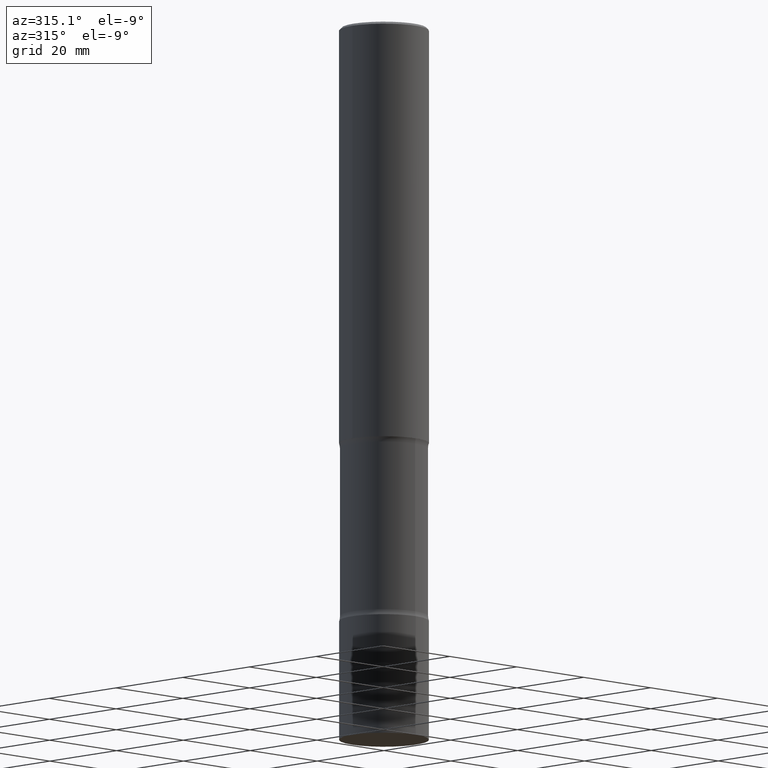
[diagram: clean part render]
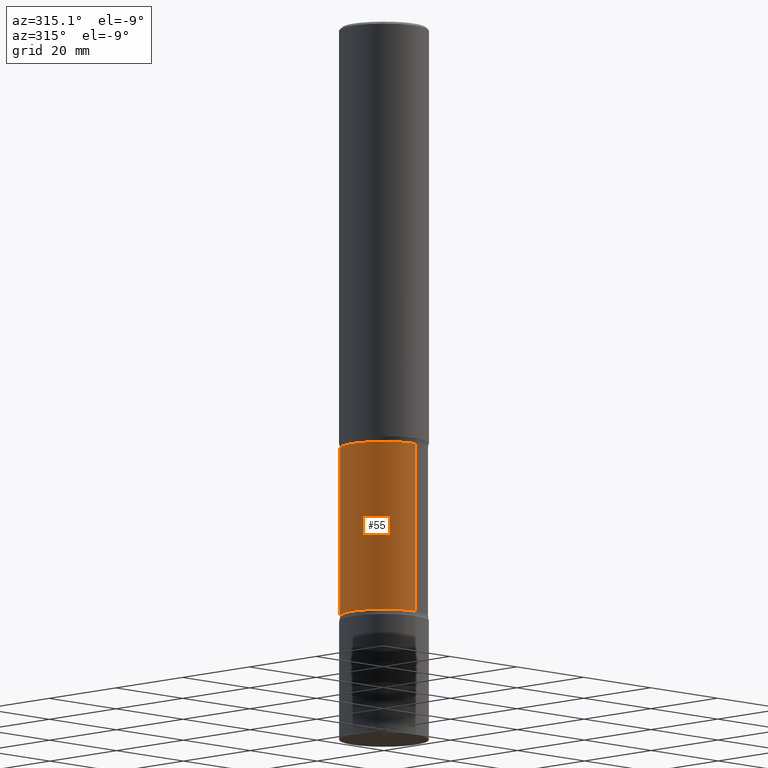
[diagram: same view with one face highlighted and labeled with its STEP entity id]
A machine part, auxiliary view. The second image highlights one B-rep face of the part: STEP entity #55.
In plain terms, the highlighted cylindrical surface (partial cylindrical patch) has radius 9.3345 mm, axis along (0, -0, -1).
Its self-contained STEP definition (entity closure, byte-faithful):
#14 = AXIS2_PLACEMENT_3D ( 'NONE', #161, #361, #438 ) ;
#15 = VECTOR ( 'NONE', #487, 39.37007874015748143 ) ;
#29 = DIRECTION ( 'NONE',  ( 2.616648921585421655E-29, -3.246341670622831231E-15, -1.000000000000000000 ) ) ;
#45 = CIRCLE ( 'NONE', #274, 0.3675000000000002709 ) ;
#48 = CARTESIAN_POINT ( 'NONE',  ( 1.211441709230488827E-28, -1.732087270645738470E-14, -4.957353194726919376 ) ) ;
#54 = DIRECTION ( 'NONE',  ( 2.616648921585421655E-29, -3.246341670622831231E-15, -1.000000000000000000 ) ) ;
#55 = ADVANCED_FACE ( 'NONE', ( #235 ), #435, .T. ) ;
#77 = CIRCLE ( 'NONE', #178, 0.3675000000000003264 ) ;
#110 = VERTEX_POINT ( 'NONE', #405 ) ;
#142 = ORIENTED_EDGE ( 'NONE', *, *, #369, .T. ) ;
#145 = CARTESIAN_POINT ( 'NONE',  ( 2.566238784049788529E-15, 0.3674999999999875588, -3.542646805273082400 ) ) ;
#152 = EDGE_CURVE ( 'NONE', #352, #429, #45, .T. ) ;
#155 = VERTEX_POINT ( 'NONE', #255 ) ;
#161 = CARTESIAN_POINT ( 'NONE',  ( 1.484265773091717840E-28, -2.070566047815715111E-14, -5.999999999999999112 ) ) ;
#178 = AXIS2_PLACEMENT_3D ( 'NONE', #48, #54, #318 ) ;
#210 = DIRECTION ( 'NONE',  ( 6.982962677686265922E-15, 1.000000000000000000, -2.973439993103957881E-15 ) ) ;
#235 = FACE_OUTER_BOUND ( 'NONE', #493, .T. ) ;
#255 = CARTESIAN_POINT ( 'NONE',  ( 2.566238784049826394E-15, 0.3674999999999829514, -4.957353194726921153 ) ) ;
#256 = LINE ( 'NONE', #496, #15 ) ;
#274 = AXIS2_PLACEMENT_3D ( 'NONE', #456, #409, #210 ) ;
#318 = DIRECTION ( 'NONE',  ( 6.982962677686265922E-15, 1.000000000000000000, -2.973439993103957486E-15 ) ) ;
#340 = EDGE_CURVE ( 'NONE', #110, #155, #77, .T. ) ;
#350 = ORIENTED_EDGE ( 'NONE', *, *, #340, .F. ) ;
#352 = VERTEX_POINT ( 'NONE', #477 ) ;
#361 = DIRECTION ( 'NONE',  ( 2.616648921585421655E-29, -3.246341670622831231E-15, -1.000000000000000000 ) ) ;
#369 = EDGE_CURVE ( 'NONE', #429, #155, #256, .T. ) ;
#385 = ORIENTED_EDGE ( 'NONE', *, *, #152, .T. ) ;
#391 = VECTOR ( 'NONE', #29, 39.37007874015748143 ) ;
#405 = CARTESIAN_POINT ( 'NONE',  ( -2.546959881672560933E-15, -0.3675000000000176459, -4.957353194726918488 ) ) ;
#409 = DIRECTION ( 'NONE',  ( 2.616648921585421655E-29, -3.246341670622831231E-15, -1.000000000000000000 ) ) ;
#429 = VERTEX_POINT ( 'NONE', #145 ) ;
#431 = EDGE_CURVE ( 'NONE', #352, #110, #483, .T. ) ;
#435 = CYLINDRICAL_SURFACE ( 'NONE', #14, 0.3675000000000002709 ) ;
#438 = DIRECTION ( 'NONE',  ( 6.982962677686265922E-15, 1.000000000000000000, -2.973439993103957881E-15 ) ) ;
#456 = CARTESIAN_POINT ( 'NONE',  ( 8.412627143980496654E-29, -1.272825240267701729E-14, -3.542646805273081512 ) ) ;
#477 = CARTESIAN_POINT ( 'NONE',  ( -2.546959881672599193E-15, -0.3675000000000129274, -3.542646805273080179 ) ) ;
#483 = LINE ( 'NONE', #499, #391 ) ;
#487 = DIRECTION ( 'NONE',  ( 2.616648921585421655E-29, -3.246341670622831231E-15, -1.000000000000000000 ) ) ;
#493 = EDGE_LOOP ( 'NONE', ( #508, #385, #142, #350 ) ) ;
#496 = CARTESIAN_POINT ( 'NONE',  ( 2.566238784049852821E-15, 0.3674999999999795652, -6.000000000000000888 ) ) ;
#499 = CARTESIAN_POINT ( 'NONE',  ( -2.521233014180890616E-15, -0.3675000000000209210, -5.999999999999998224 ) ) ;
#508 = ORIENTED_EDGE ( 'NONE', *, *, #431, .F. ) ;